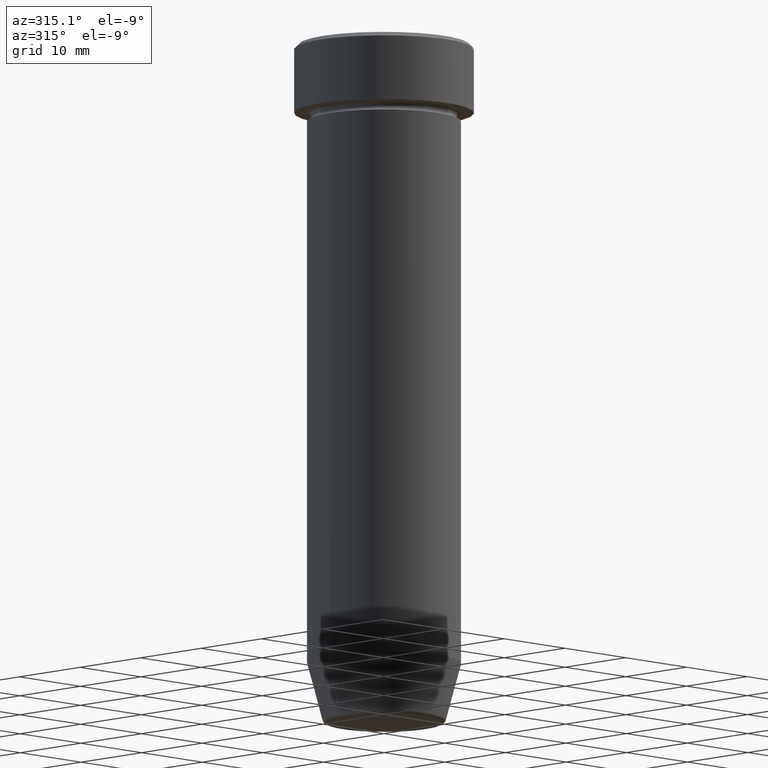
[diagram: clean part render]
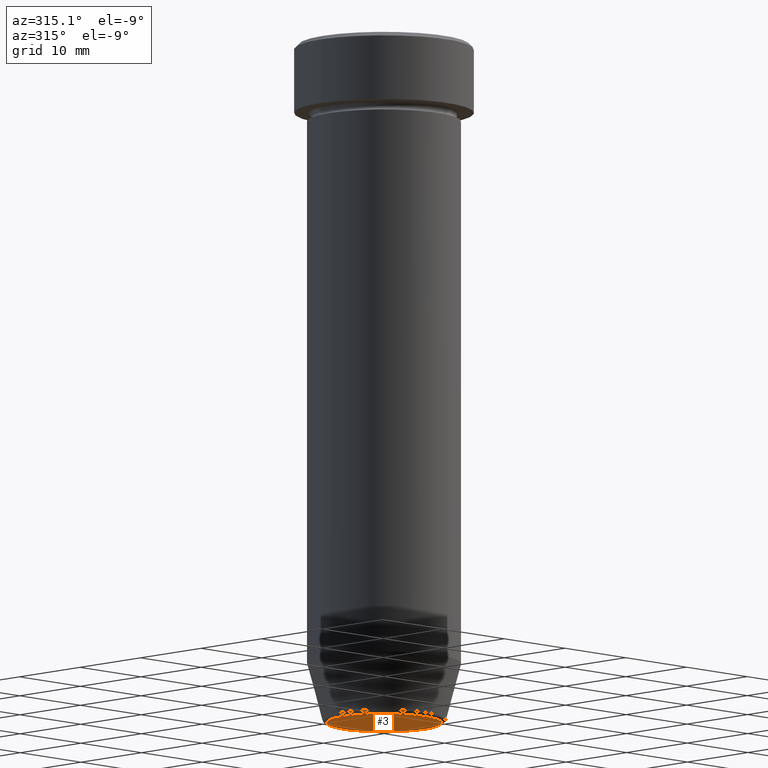
[diagram: same view with one face highlighted and labeled with its STEP entity id]
A machine part, auxiliary view. The second image highlights one B-rep face of the part: STEP entity #3.
In plain terms, the highlighted planar face has unit normal (0, -0, 1).
Its self-contained STEP definition (entity closure, byte-faithful):
#3 = ADVANCED_FACE ( 'NONE', ( #159 ), #479, .F. ) ;
#20 = DIRECTION ( 'NONE',  ( 0.000000000000000000, -0.000000000000000000, 1.000000000000000000 ) ) ;
#37 = VERTEX_POINT ( 'NONE', #122 ) ;
#47 = ORIENTED_EDGE ( 'NONE', *, *, #117, .T. ) ;
#49 = EDGE_LOOP ( 'NONE', ( #328, #47 ) ) ;
#69 = DIRECTION ( 'NONE',  ( 1.000000000000000000, 0.000000000000000000, 0.000000000000000000 ) ) ;
#78 = CARTESIAN_POINT ( 'NONE',  ( 0.000000000000000000, 0.000000000000000000, -80.00000000000000000 ) ) ;
#91 = AXIS2_PLACEMENT_3D ( 'NONE', #339, #444, #347 ) ;
#117 = EDGE_CURVE ( 'NONE', #37, #214, #150, .T. ) ;
#122 = CARTESIAN_POINT ( 'NONE',  ( -6.740692158992655614, 8.550696569392683709E-16, -80.00000000000000000 ) ) ;
#150 = CIRCLE ( 'NONE', #470, 6.740692158992655614 ) ;
#159 = FACE_OUTER_BOUND ( 'NONE', #49, .T. ) ;
#208 = CARTESIAN_POINT ( 'NONE',  ( 0.000000000000000000, 3.673940397442061544E-15, -80.00000000000000000 ) ) ;
#214 = VERTEX_POINT ( 'NONE', #331 ) ;
#328 = ORIENTED_EDGE ( 'NONE', *, *, #345, .T. ) ;
#331 = CARTESIAN_POINT ( 'NONE',  ( 6.740692158992655614, 0.000000000000000000, -80.00000000000000000 ) ) ;
#339 = CARTESIAN_POINT ( 'NONE',  ( 0.000000000000000000, 0.000000000000000000, -80.00000000000000000 ) ) ;
#345 = EDGE_CURVE ( 'NONE', #214, #37, #540, .T. ) ;
#347 = DIRECTION ( 'NONE',  ( 1.000000000000000000, 0.000000000000000000, 0.000000000000000000 ) ) ;
#387 = AXIS2_PLACEMENT_3D ( 'NONE', #208, #20, #69 ) ;
#444 = DIRECTION ( 'NONE',  ( 0.000000000000000000, 0.000000000000000000, -1.000000000000000000 ) ) ;
#451 = DIRECTION ( 'NONE',  ( 1.000000000000000000, 0.000000000000000000, 0.000000000000000000 ) ) ;
#470 = AXIS2_PLACEMENT_3D ( 'NONE', #78, #526, #451 ) ;
#479 = PLANE ( 'NONE',  #387 ) ;
#526 = DIRECTION ( 'NONE',  ( 0.000000000000000000, 0.000000000000000000, -1.000000000000000000 ) ) ;
#540 = CIRCLE ( 'NONE', #91, 6.740692158992655614 ) ;